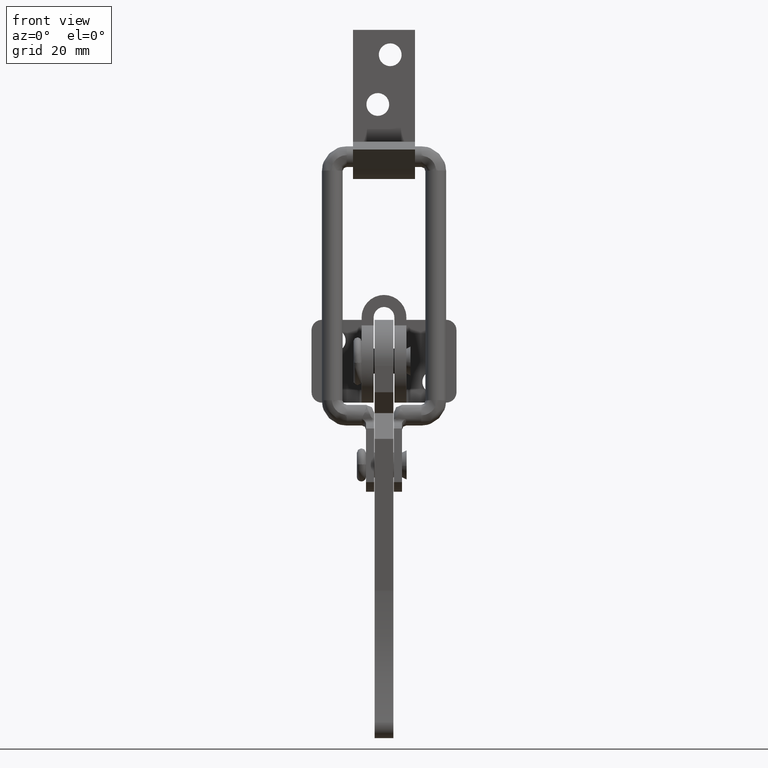
[diagram: clean part render]
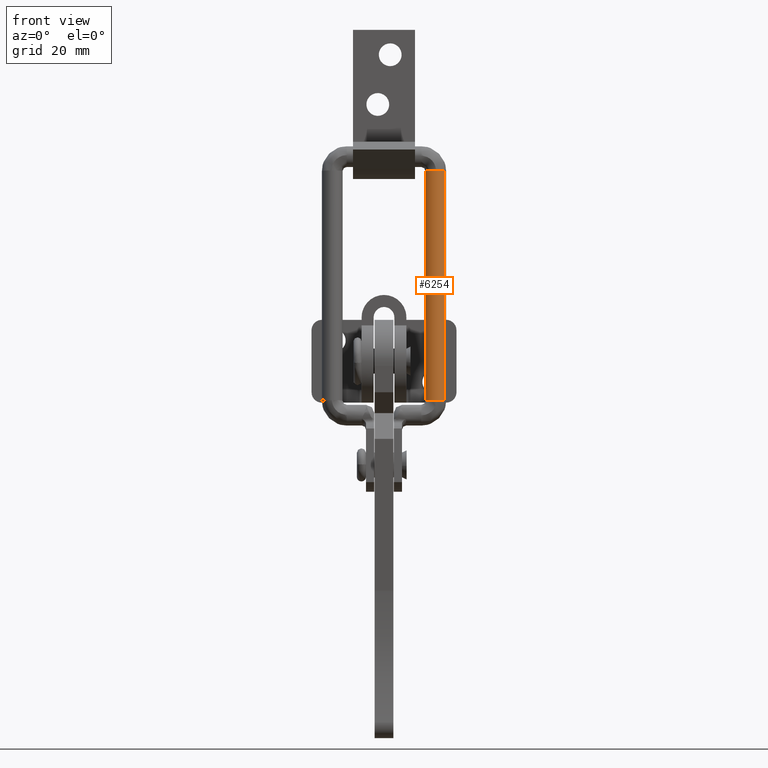
[diagram: same view with one face highlighted and labeled with its STEP entity id]
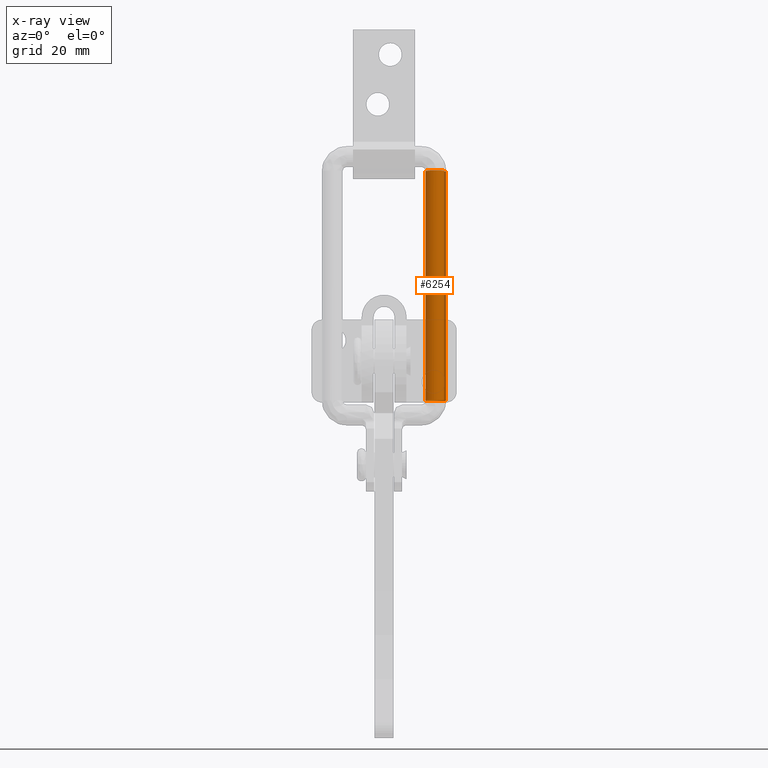
[diagram: x-ray of the same camera — body ghosted, the highlighted face saturated]
A machine part, front view. The second image highlights one B-rep face of the part: STEP entity #6254.
The next image is the same camera in x-ray: the body ghosted, the highlighted face saturated — about 0% of this face is hidden behind the body in this view.
In plain terms, the highlighted face is a freeform B-spline surface patch.
Its self-contained STEP definition (entity closure, byte-faithful):
#6054=CARTESIAN_POINT('',(14.998174865378745,6.547212873873502,-10.918317246678521));
#6055=CARTESIAN_POINT('',(15.048004724700686,7.830288016771667,-11.002463315853790));
#6056=CARTESIAN_POINT('',(14.030518214137810,8.616359902036795,-11.054015136181979));
#6057=CARTESIAN_POINT('',(12.053736221728467,10.143547468063346,-11.154170478825598));
#6058=CARTESIAN_POINT('',(10.523268007590660,8.171002823447219,-11.024807924312810));
#6059=CARTESIAN_POINT('',(8.992799793452859,6.198458178831094,-10.895445369800015));
#6060=CARTESIAN_POINT('',(10.969581785862200,4.671270612804543,-10.795290027156391));
#6061=CARTESIAN_POINT('',(12.946363778271532,3.144083046777993,-10.695134684512773));
#6062=CARTESIAN_POINT('',(14.476831992409339,5.116627691394118,-10.824497239025570));
#6063=CARTESIAN_POINT('',(14.998174865378745,10.367532781027274,47.334641671440032));
#6064=CARTESIAN_POINT('',(15.048004724700686,11.650607923925440,47.250495602264770));
#6065=CARTESIAN_POINT('',(14.030518214137810,12.436679809190570,47.198943781936578));
#6066=CARTESIAN_POINT('',(12.053736221728467,13.963867375217117,47.098788439292974));
#6067=CARTESIAN_POINT('',(10.523268007590660,11.991322730600990,47.228150993805762));
#6068=CARTESIAN_POINT('',(8.992799793452859,10.018778085984867,47.357513548318551));
#6069=CARTESIAN_POINT('',(10.969581785862200,8.491590519958315,47.457668890962168));
#6070=CARTESIAN_POINT('',(12.946363778271532,6.964402953931766,47.557824233605793));
#6071=CARTESIAN_POINT('',(14.476831992409339,8.936947598547892,47.428461679092990));
#6079=(BOUNDED_SURFACE()B_SPLINE_SURFACE(2,1,((#6054,#6063),(#6055,#6064),(#6056,#6065),(#6057,#6066),(#6058,#6067),(#6059,#6068),(#6060,#6069),(#6061,#6070),(#6062,#6071)),.UNSPECIFIED.,.F.,.F.,.U.)B_SPLINE_SURFACE_WITH_KNOTS((3,2,2,2,3),(2,2),(0.0,2.485281374238570,6.627416997969521,10.769552621700470,14.911688245431421),(0.0,58.378095780086937),.UNSPECIFIED.)GEOMETRIC_REPRESENTATION_ITEM()RATIONAL_B_SPLINE_SURFACE(((0.859411254969543,0.859411254969543),(0.824264068711928,0.824264068711928),(1.0,1.0),(0.707106781186548,0.707106781186548),(1.0,1.0),(0.707106781186548,0.707106781186548),(1.0,1.0),(0.707106781186548,0.707106781186548),(1.0,1.0)))REPRESENTATION_ITEM('')SURFACE());
#6080=CARTESIAN_POINT('',(14.994691103812301,10.534208393106629,45.896796149394447));
#6081=VERTEX_POINT('',#6080);
#6082=CARTESIAN_POINT('',(14.998174865366931,10.274354246025711,45.913837789673110));
#6083=VERTEX_POINT('',#6082);
#6084=CARTESIAN_POINT('',(14.994691103812301,10.534208393106629,45.896796149394447));
#6085=CARTESIAN_POINT('',(15.003224269798794,10.404371977567180,45.905311024040664));
#6086=CARTESIAN_POINT('',(14.998174865366929,10.274354246025709,45.913837789673110));
#6094=(BOUNDED_CURVE()B_SPLINE_CURVE(2,(#6084,#6085,#6086),.UNSPECIFIED.,.F.,.U.)B_SPLINE_CURVE_WITH_KNOTS((3,3),(0.0,0.018050638861003),.UNSPECIFIED.)CURVE()GEOMETRIC_REPRESENTATION_ITEM()RATIONAL_B_SPLINE_CURVE((1.0,0.978852361129446,0.960758549395015))REPRESENTATION_ITEM(''));
#6095=EDGE_CURVE('',#6081,#6083,#6094,.T.);
#6096=ORIENTED_EDGE('',*,*,#6095,.T.);
#6097=CARTESIAN_POINT('',(14.998174865334210,6.638118760975205,-9.532167119674369));
#6098=VERTEX_POINT('',#6097);
#6099=CARTESIAN_POINT('',(14.998174865334210,6.638118760975205,-9.532167119674369));
#6100=CARTESIAN_POINT('',(14.998174865366931,10.274354246025711,45.913837789673110));
#6101=QUASI_UNIFORM_CURVE('',1,(#6099,#6100),.UNSPECIFIED.,.F.,.U.);
#6102=EDGE_CURVE('',#6098,#6083,#6101,.T.);
#6103=ORIENTED_EDGE('',*,*,#6102,.F.);
#6104=CARTESIAN_POINT('',(14.994691103812301,6.897972908056994,-9.549208759930744));
#6105=VERTEX_POINT('',#6104);
#6106=CARTESIAN_POINT('',(14.994691103812301,6.897972908056994,-9.549208759930744));
#6107=CARTESIAN_POINT('',(15.003224269798553,6.768136492521180,-9.540693885284769));
#6108=CARTESIAN_POINT('',(14.998174865334203,6.638118760975205,-9.532167119674369));
#6116=(BOUNDED_CURVE()B_SPLINE_CURVE(2,(#6106,#6107,#6108),.UNSPECIFIED.,.F.,.U.)B_SPLINE_CURVE_WITH_KNOTS((3,3),(0.0,0.018050638860508),.UNSPECIFIED.)CURVE()GEOMETRIC_REPRESENTATION_ITEM()RATIONAL_B_SPLINE_CURVE((1.0,0.978852361130026,0.960758549396008))REPRESENTATION_ITEM(''));
#6117=EDGE_CURVE('',#6105,#6098,#6116,.T.);
#6118=ORIENTED_EDGE('',*,*,#6117,.F.);
#6119=CARTESIAN_POINT('',(12.437224770291801,9.228574414252037,-9.702053245222526));
#6120=VERTEX_POINT('',#6119);
#6121=CARTESIAN_POINT('',(12.437224770291797,9.228574414252037,-9.702053245222526));
#6122=CARTESIAN_POINT('',(14.837561113956738,9.288784792990548,-9.706001932464863));
#6123=CARTESIAN_POINT('',(14.994691103812301,6.897972908056994,-9.549208759930744));
#6131=(BOUNDED_CURVE()B_SPLINE_CURVE(2,(#6121,#6122,#6123),.UNSPECIFIED.,.F.,.U.)B_SPLINE_CURVE_WITH_KNOTS((3,3),(0.757075655133137,1.0),.UNSPECIFIED.)CURVE()GEOMETRIC_REPRESENTATION_ITEM()RATIONAL_B_SPLINE_CURVE((0.983889946131886,0.715396426815181,1.0))REPRESENTATION_ITEM(''));
#6132=EDGE_CURVE('',#6120,#6105,#6131,.T.);
#6133=ORIENTED_EDGE('',*,*,#6132,.F.);
#6134=CARTESIAN_POINT('',(10.005408896187699,6.571469381597367,-9.527796149394636));
#6135=VERTEX_POINT('',#6134);
#6136=CARTESIAN_POINT('',(10.005408896187699,6.571469381597367,-9.527796149394636));
#6137=CARTESIAN_POINT('',(9.841806441529657,9.060763076329312,-9.691047912624450));
#6138=CARTESIAN_POINT('',(12.336447545341960,9.224014839559127,-9.701754217892505));
#6139=CARTESIAN_POINT('',(12.386790056726259,9.227309302933575,-9.701970273939210));
#6140=CARTESIAN_POINT('',(12.437224770291795,9.228574414252037,-9.702053245222526));
#6148=(BOUNDED_CURVE()B_SPLINE_CURVE(2,(#6136,#6137,#6138,#6139,#6140),.UNSPECIFIED.,.F.,.U.)B_SPLINE_CURVE_WITH_KNOTS((3,2,3),(0.500000000000000,0.750000000000000,0.757075655133137),.UNSPECIFIED.)CURVE()GEOMETRIC_REPRESENTATION_ITEM()RATIONAL_B_SPLINE_CURVE((1.0,0.707106781186548,1.0,0.991710354371367,0.983889946131887))REPRESENTATION_ITEM(''));
#6149=EDGE_CURVE('',#6135,#6120,#6148,.T.);
#6150=ORIENTED_EDGE('',*,*,#6149,.F.);
#6151=CARTESIAN_POINT('',(12.705708001344760,4.248535279930524,-9.375454511807561));
#6152=VERTEX_POINT('',#6151);
#6153=CARTESIAN_POINT('',(12.705708001344762,4.248535279930524,-9.375454511807561));
#6154=CARTESIAN_POINT('',(12.684693368525508,4.246804388158021,-9.375340993178744));
#6155=CARTESIAN_POINT('',(12.663652454658040,4.245427450095235,-9.375250691432877));
#6156=CARTESIAN_POINT('',(10.169011350845738,4.082175686865421,-9.364544386164821));
#6157=CARTESIAN_POINT('',(10.005408896187699,6.571469381597367,-9.527796149394636));
#6165=(BOUNDED_CURVE()B_SPLINE_CURVE(2,(#6153,#6154,#6155,#6156,#6157),.UNSPECIFIED.,.F.,.U.)B_SPLINE_CURVE_WITH_KNOTS((3,2,3),(0.247028355197139,0.250000000000000,0.500000000000000),.UNSPECIFIED.)CURVE()GEOMETRIC_REPRESENTATION_ITEM()RATIONAL_B_SPLINE_CURVE((0.993119769322261,0.996518501554079,1.0,0.707106781186548,1.0))REPRESENTATION_ITEM(''));
#6166=EDGE_CURVE('',#6152,#6135,#6165,.T.);
#6167=ORIENTED_EDGE('',*,*,#6166,.F.);
#6168=CARTESIAN_POINT('',(14.476831991519390,5.207533579420418,-9.438347113093020));
#6169=VERTEX_POINT('',#6168);
#6170=CARTESIAN_POINT('',(14.476831991519388,5.207533579420419,-9.438347113093018));
#6171=CARTESIAN_POINT('',(13.802875634317212,4.338904630532246,-9.381381072963292));
#6172=CARTESIAN_POINT('',(12.705708001344762,4.248535279930524,-9.375454511807561));
#6180=(BOUNDED_CURVE()B_SPLINE_CURVE(2,(#6170,#6171,#6172),.UNSPECIFIED.,.F.,.U.)B_SPLINE_CURVE_WITH_KNOTS((3,3),(0.115779887935161,0.247028355197139),.UNSPECIFIED.)CURVE()GEOMETRIC_REPRESENTATION_ITEM()RATIONAL_B_SPLINE_CURVE((0.854350158246476,0.843008155837907,0.993119769322261))REPRESENTATION_ITEM(''));
#6181=EDGE_CURVE('',#6169,#6152,#6180,.T.);
#6182=ORIENTED_EDGE('',*,*,#6181,.F.);
#6183=CARTESIAN_POINT('',(14.476831992409330,8.843769063850592,46.007657797306109));
#6184=VERTEX_POINT('',#6183);
#6185=CARTESIAN_POINT('',(14.476831991519390,5.207533579420418,-9.438347113093020));
#6186=CARTESIAN_POINT('',(14.476831992409330,8.843769063850592,46.007657797306109));
#6187=QUASI_UNIFORM_CURVE('',1,(#6185,#6186),.UNSPECIFIED.,.F.,.U.);
#6188=EDGE_CURVE('',#6169,#6184,#6187,.T.);
#6189=ORIENTED_EDGE('',*,*,#6188,.T.);
#6190=CARTESIAN_POINT('',(12.531465099571729,7.876512492433289,46.071091991896743));
#6191=VERTEX_POINT('',#6190);
#6192=CARTESIAN_POINT('',(14.476831992409327,8.843769063850592,46.007657797306109));
#6193=CARTESIAN_POINT('',(13.787406332172418,7.955202492262012,46.065931379031674));
#6194=CARTESIAN_POINT('',(12.663652454658040,7.881662935144874,46.070754217892322));
#6195=CARTESIAN_POINT('',(12.597627081542354,7.877342169900298,46.071037580416458));
#6196=CARTESIAN_POINT('',(12.531465099571728,7.876512492433289,46.071091991896736));
#6204=(BOUNDED_CURVE()B_SPLINE_CURVE(2,(#6192,#6193,#6194,#6195,#6196),.UNSPECIFIED.,.F.,.U.)B_SPLINE_CURVE_WITH_KNOTS((3,2,3),(0.115779888059574,0.250000000000000,0.259255983261400),.UNSPECIFIED.)CURVE()GEOMETRIC_REPRESENTATION_ITEM()RATIONAL_B_SPLINE_CURVE((0.854350158224973,0.842751357537066,1.0,0.989155941077140,0.979114861577285))REPRESENTATION_ITEM(''));
#6205=EDGE_CURVE('',#6184,#6191,#6204,.T.);
#6206=ORIENTED_EDGE('',*,*,#6205,.T.);
#6207=CARTESIAN_POINT('',(10.005408896187699,10.207704866647010,45.918208759930550));
#6208=VERTEX_POINT('',#6207);
#6209=CARTESIAN_POINT('',(12.531465099571728,7.876512492433289,46.071091991896736));
#6210=CARTESIAN_POINT('',(10.160574552684970,7.846781302480753,46.073041809769791));
#6211=CARTESIAN_POINT('',(10.005408896187699,10.207704866647010,45.918208759930550));
#6219=(BOUNDED_CURVE()B_SPLINE_CURVE(2,(#6209,#6210,#6211),.UNSPECIFIED.,.F.,.U.)B_SPLINE_CURVE_WITH_KNOTS((3,3),(0.259255983261400,0.500000000000000),.UNSPECIFIED.)CURVE()GEOMETRIC_REPRESENTATION_ITEM()RATIONAL_B_SPLINE_CURVE((0.979114861577285,0.717950840109408,1.0))REPRESENTATION_ITEM(''));
#6220=EDGE_CURVE('',#6191,#6208,#6219,.T.);
#6221=ORIENTED_EDGE('',*,*,#6220,.T.);
#6222=CARTESIAN_POINT('',(12.032807335652009,12.821640916587279,45.746782762392499));
#6223=VERTEX_POINT('',#6222);
#6224=CARTESIAN_POINT('',(10.005408896187699,10.207704866647010,45.918208759930550));
#6225=CARTESIAN_POINT('',(9.860715504770894,12.409287646539154,45.773825527259206));
#6226=CARTESIAN_POINT('',(12.032807335652009,12.821640916587281,45.746782762392506));
#6234=(BOUNDED_CURVE()B_SPLINE_CURVE(2,(#6224,#6225,#6226),.UNSPECIFIED.,.F.,.U.)B_SPLINE_CURVE_WITH_KNOTS((3,3),(0.500000000000000,0.728852368597465),.UNSPECIFIED.)CURVE()GEOMETRIC_REPRESENTATION_ITEM()RATIONAL_B_SPLINE_CURVE((1.0,0.731882772513623,0.954639645603588))REPRESENTATION_ITEM(''));
#6235=EDGE_CURVE('',#6208,#6223,#6234,.T.);
#6236=ORIENTED_EDGE('',*,*,#6235,.T.);
#6237=CARTESIAN_POINT('',(12.032807335652006,12.821640916587279,45.746782762392499));
#6238=CARTESIAN_POINT('',(12.183440857134025,12.850237416700795,45.744907353551142));
#6239=CARTESIAN_POINT('',(12.336447545341960,12.860250324608771,45.744250691432683));
#6240=CARTESIAN_POINT('',(14.831088649154259,13.023502087838580,45.733544386164631));
#6241=CARTESIAN_POINT('',(14.994691103812301,10.534208393106629,45.896796149394447));
#6249=(BOUNDED_CURVE()B_SPLINE_CURVE(2,(#6237,#6238,#6239,#6240,#6241),.UNSPECIFIED.,.F.,.U.)B_SPLINE_CURVE_WITH_KNOTS((3,2,3),(0.728852368597466,0.750000000000000,1.0),.UNSPECIFIED.)CURVE()GEOMETRIC_REPRESENTATION_ITEM()RATIONAL_B_SPLINE_CURVE((0.954639645603590,0.975224008672926,1.0,0.707106781186548,1.0))REPRESENTATION_ITEM(''));
#6250=EDGE_CURVE('',#6223,#6081,#6249,.T.);
#6251=ORIENTED_EDGE('',*,*,#6250,.T.);
#6252=EDGE_LOOP('',(#6096,#6103,#6118,#6133,#6150,#6167,#6182,#6189,#6206,#6221,#6236,#6251));
#6253=FACE_OUTER_BOUND('',#6252,.T.);
#6254=ADVANCED_FACE('',(#6253),#6079,.T.);